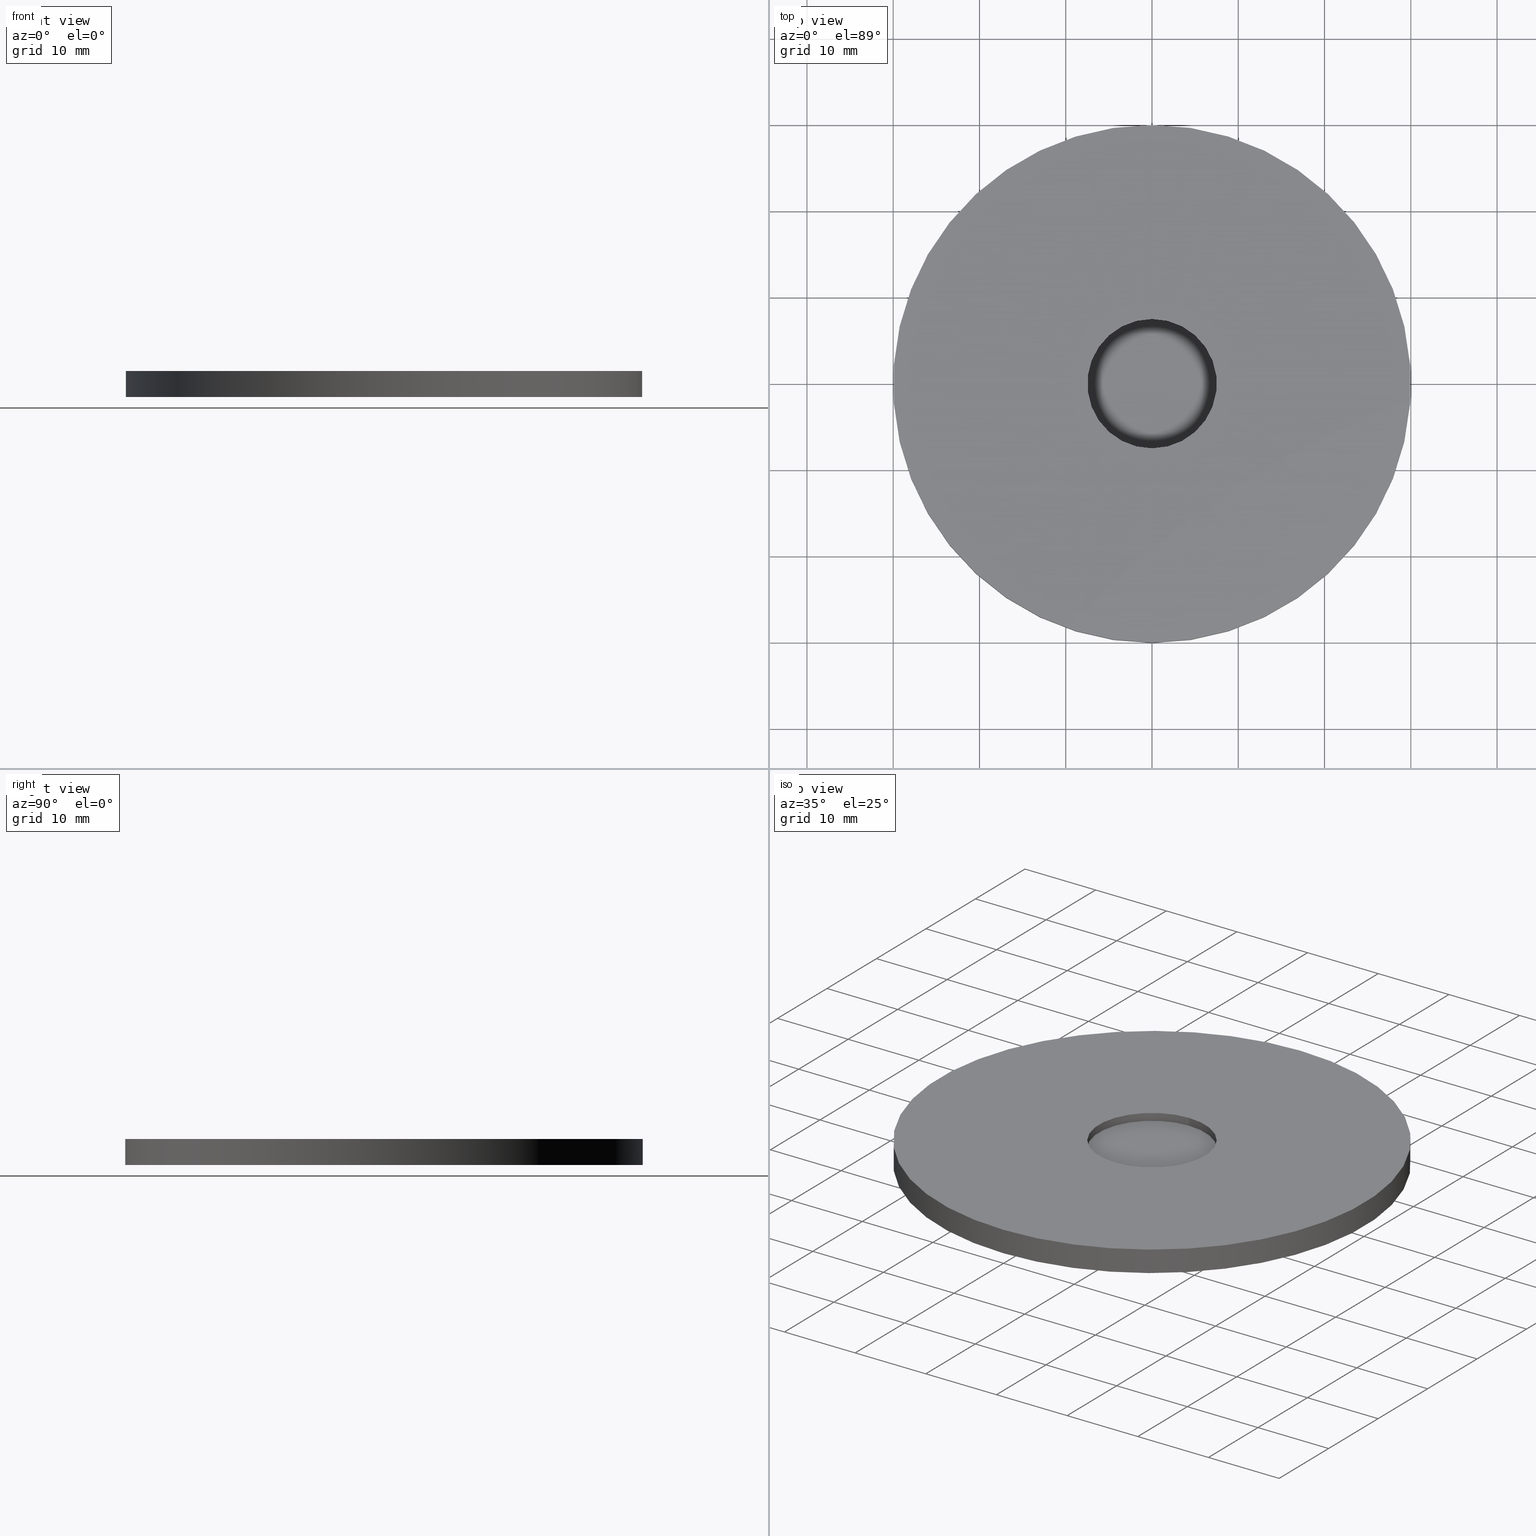
[diagram: canonical four-view strip — front | top / right | iso, engineering-drawing reading convention]
A machine part, canonical four-view strip (front | top / right | iso — engineering-drawing reading convention). The complete STEP part file that produces these views, byte-faithful:
ISO-10303-21;
HEADER;
/* Generated by software containing ST-Developer
 * from STEP Tools, Inc. (www.steptools.com) 
 */

FILE_DESCRIPTION(
/* description */ ('ACC.PIEDE'),
/* implementation_level */ '2;1');

FILE_NAME(
/* name */ 
'C:\\Users\\tecnico7\\Desktop\\NUOVI DISEGNI 3D\\CPDAA0000015.stp',
/* time_stamp */ '2022-11-22T15:40:19+01:00',
/* author */ ('tecnico7'),
/* organization */ (''),
/* preprocessor_version */ 'ST-DEVELOPER v18.1',
/* originating_system */ 'Autodesk Inventor 2022',
/* authorisation */ '');

FILE_SCHEMA (('AUTOMOTIVE_DESIGN { 1 0 10303 214 3 1 1 }'));
ENDSEC;

DATA;
#10=MECHANICAL_DESIGN_GEOMETRIC_PRESENTATION_REPRESENTATION('',(#61,#62,
#63,#64,#65,#66),#145);
#11=SHAPE_REPRESENTATION_RELATIONSHIP('SRR','None',#152,#12);
#12=ADVANCED_BREP_SHAPE_REPRESENTATION('',(#13),#144);
#13=MANIFOLD_SOLID_BREP('None',#72);
#14=FACE_BOUND('',#25,.T.);
#15=PLANE('',#98);
#16=PLANE('',#100);
#17=PLANE('',#103);
#18=FACE_OUTER_BOUND('',#23,.T.);
#19=FACE_OUTER_BOUND('',#24,.T.);
#20=FACE_OUTER_BOUND('',#26,.T.);
#21=FACE_OUTER_BOUND('',#27,.T.);
#22=FACE_OUTER_BOUND('',#28,.T.);
#23=EDGE_LOOP('',(#47,#48,#49,#50));
#24=EDGE_LOOP('',(#51));
#25=EDGE_LOOP('',(#52));
#26=EDGE_LOOP('',(#53));
#27=EDGE_LOOP('',(#54,#55,#56,#57));
#28=EDGE_LOOP('',(#58));
#29=LINE('',#131,#31);
#30=LINE('',#140,#32);
#31=VECTOR('',#110,30.);
#32=VECTOR('',#123,7.5);
#33=CIRCLE('',#96,30.);
#34=CIRCLE('',#97,30.);
#35=CIRCLE('',#99,7.5);
#36=CIRCLE('',#102,7.5);
#37=VERTEX_POINT('',#128);
#38=VERTEX_POINT('',#130);
#39=VERTEX_POINT('',#134);
#40=VERTEX_POINT('',#138);
#41=EDGE_CURVE('',#37,#37,#33,.T.);
#42=EDGE_CURVE('',#37,#38,#29,.T.);
#43=EDGE_CURVE('',#38,#38,#34,.T.);
#44=EDGE_CURVE('',#39,#39,#35,.T.);
#45=EDGE_CURVE('',#40,#40,#36,.T.);
#46=EDGE_CURVE('',#40,#39,#30,.T.);
#47=ORIENTED_EDGE('',*,*,#41,.F.);
#48=ORIENTED_EDGE('',*,*,#42,.T.);
#49=ORIENTED_EDGE('',*,*,#43,.T.);
#50=ORIENTED_EDGE('',*,*,#42,.F.);
#51=ORIENTED_EDGE('',*,*,#43,.F.);
#52=ORIENTED_EDGE('',*,*,#44,.F.);
#53=ORIENTED_EDGE('',*,*,#41,.T.);
#54=ORIENTED_EDGE('',*,*,#45,.F.);
#55=ORIENTED_EDGE('',*,*,#46,.T.);
#56=ORIENTED_EDGE('',*,*,#44,.T.);
#57=ORIENTED_EDGE('',*,*,#46,.F.);
#58=ORIENTED_EDGE('',*,*,#45,.T.);
#59=CYLINDRICAL_SURFACE('',#95,30.);
#60=CYLINDRICAL_SURFACE('',#101,7.5);
#61=STYLED_ITEM('',(#164),#67);
#62=STYLED_ITEM('',(#164),#68);
#63=STYLED_ITEM('',(#164),#69);
#64=STYLED_ITEM('',(#164),#70);
#65=STYLED_ITEM('',(#164),#71);
#66=STYLED_ITEM('',(#163),#13);
#67=ADVANCED_FACE('',(#18),#59,.T.);
#68=ADVANCED_FACE('',(#19,#14),#15,.F.);
#69=ADVANCED_FACE('',(#20),#16,.T.);
#70=ADVANCED_FACE('',(#21),#60,.F.);
#71=ADVANCED_FACE('',(#22),#17,.T.);
#72=CLOSED_SHELL('',(#67,#68,#69,#70,#71));
#73=DERIVED_UNIT_ELEMENT(#76,1.);
#74=DERIVED_UNIT_ELEMENT(#147,-3.);
#75=DIMENSIONAL_EXPONENTS(1.,0.,0.,0.,0.,0.,0.);
#76=(
CONVERSION_BASED_UNIT('gram',#78)
MASS_UNIT()
NAMED_UNIT(#75)
);
#77=(
MASS_UNIT()
NAMED_UNIT(*)
SI_UNIT(.KILO.,.GRAM.)
);
#78=MASS_MEASURE_WITH_UNIT(MASS_MEASURE(0.001),#77);
#79=DERIVED_UNIT((#73,#74));
#80=MEASURE_REPRESENTATION_ITEM('density measure',
POSITIVE_RATIO_MEASURE(0.93),#79);
#81=PROPERTY_DEFINITION_REPRESENTATION(#86,#83);
#82=PROPERTY_DEFINITION_REPRESENTATION(#87,#84);
#83=REPRESENTATION('material name',(#85),#144);
#84=REPRESENTATION('density',(#80),#144);
#85=DESCRIPTIVE_REPRESENTATION_ITEM('Gomma','Gomma');
#86=PROPERTY_DEFINITION('material property','material name',#154);
#87=PROPERTY_DEFINITION('material property','density of part',#154);
#88=DATE_TIME_ROLE('creation_date');
#89=APPLIED_DATE_AND_TIME_ASSIGNMENT(#90,#88,(#154));
#90=DATE_AND_TIME(#91,#92);
#91=CALENDAR_DATE(2011,28,12);
#92=LOCAL_TIME(0,0,0.,#93);
#93=COORDINATED_UNIVERSAL_TIME_OFFSET(0,0,.BEHIND.);
#94=AXIS2_PLACEMENT_3D('placement',#126,#104,#105);
#95=AXIS2_PLACEMENT_3D('',#127,#106,#107);
#96=AXIS2_PLACEMENT_3D('',#129,#108,#109);
#97=AXIS2_PLACEMENT_3D('',#132,#111,#112);
#98=AXIS2_PLACEMENT_3D('',#133,#113,#114);
#99=AXIS2_PLACEMENT_3D('',#135,#115,#116);
#100=AXIS2_PLACEMENT_3D('',#136,#117,#118);
#101=AXIS2_PLACEMENT_3D('',#137,#119,#120);
#102=AXIS2_PLACEMENT_3D('',#139,#121,#122);
#103=AXIS2_PLACEMENT_3D('',#141,#124,#125);
#104=DIRECTION('axis',(0.,0.,1.));
#105=DIRECTION('refdir',(1.,0.,0.));
#106=DIRECTION('center_axis',(0.,0.,-1.));
#107=DIRECTION('ref_axis',(0.,-1.,0.));
#108=DIRECTION('center_axis',(0.,0.,-1.));
#109=DIRECTION('ref_axis',(0.,-1.,0.));
#110=DIRECTION('',(0.,0.,1.));
#111=DIRECTION('center_axis',(0.,0.,-1.));
#112=DIRECTION('ref_axis',(0.,-1.,0.));
#113=DIRECTION('center_axis',(0.,0.,-1.));
#114=DIRECTION('ref_axis',(-1.,0.,0.));
#115=DIRECTION('center_axis',(0.,0.,1.));
#116=DIRECTION('ref_axis',(0.,-1.,0.));
#117=DIRECTION('center_axis',(0.,0.,-1.));
#118=DIRECTION('ref_axis',(-1.,0.,0.));
#119=DIRECTION('center_axis',(0.,0.,1.));
#120=DIRECTION('ref_axis',(0.,-1.,0.));
#121=DIRECTION('center_axis',(0.,0.,1.));
#122=DIRECTION('ref_axis',(0.,-1.,0.));
#123=DIRECTION('',(0.,0.,1.));
#124=DIRECTION('center_axis',(0.,0.,1.));
#125=DIRECTION('ref_axis',(1.,0.,0.));
#126=CARTESIAN_POINT('',(0.,0.,0.));
#127=CARTESIAN_POINT('Origin',(0.,4.286264E-16,7.));
#128=CARTESIAN_POINT('',(0.,30.,-1.83697E-15));
#129=CARTESIAN_POINT('Origin',(0.,0.,0.));
#130=CARTESIAN_POINT('',(0.,30.,3.));
#131=CARTESIAN_POINT('',(3.67394039744206E-15,30.,7.));
#132=CARTESIAN_POINT('Origin',(0.,4.286264E-16,3.));
#133=CARTESIAN_POINT('Origin',(36.0000342781768,36.0000342781768,3.));
#134=CARTESIAN_POINT('',(0.,7.5,3.));
#135=CARTESIAN_POINT('Origin',(0.,4.286264E-16,3.));
#136=CARTESIAN_POINT('Origin',(36.0000342781768,36.0000342781768,-2.204366E-15));
#137=CARTESIAN_POINT('Origin',(0.,4.286264E-16,7.));
#138=CARTESIAN_POINT('',(0.,7.5,2.));
#139=CARTESIAN_POINT('Origin',(0.,1.224647E-16,2.));
#140=CARTESIAN_POINT('',(-9.18485099360515E-16,7.5,7.));
#141=CARTESIAN_POINT('Origin',(-9.00340606574514,-9.00340606572676,2.));
#142=UNCERTAINTY_MEASURE_WITH_UNIT(LENGTH_MEASURE(0.01),#146,
'DISTANCE_ACCURACY_VALUE',
'Maximum model space distance between geometric entities at asserted c
onnectivities');
#143=UNCERTAINTY_MEASURE_WITH_UNIT(LENGTH_MEASURE(0.01),#146,
'DISTANCE_ACCURACY_VALUE',
'Maximum model space distance between geometric entities at asserted c
onnectivities');
#144=(
GEOMETRIC_REPRESENTATION_CONTEXT(3)
GLOBAL_UNCERTAINTY_ASSIGNED_CONTEXT((#142))
GLOBAL_UNIT_ASSIGNED_CONTEXT((#146,#148,#149))
REPRESENTATION_CONTEXT('','3D')
);
#145=(
GEOMETRIC_REPRESENTATION_CONTEXT(3)
GLOBAL_UNCERTAINTY_ASSIGNED_CONTEXT((#143))
GLOBAL_UNIT_ASSIGNED_CONTEXT((#146,#148,#149))
REPRESENTATION_CONTEXT('','3D')
);
#146=(
LENGTH_UNIT()
NAMED_UNIT(*)
SI_UNIT(.MILLI.,.METRE.)
);
#147=(
LENGTH_UNIT()
NAMED_UNIT(*)
SI_UNIT(.CENTI.,.METRE.)
);
#148=(
NAMED_UNIT(*)
PLANE_ANGLE_UNIT()
SI_UNIT($,.RADIAN.)
);
#149=(
NAMED_UNIT(*)
SI_UNIT($,.STERADIAN.)
SOLID_ANGLE_UNIT()
);
#150=SHAPE_DEFINITION_REPRESENTATION(#151,#152);
#151=PRODUCT_DEFINITION_SHAPE('',$,#154);
#152=SHAPE_REPRESENTATION('',(#94),#144);
#153=PRODUCT_DEFINITION_CONTEXT('part definition',#158,'design');
#154=PRODUCT_DEFINITION('CPDAA0000015','CPDAA0000015',#155,#153);
#155=PRODUCT_DEFINITION_FORMATION('A',$,#160);
#156=PRODUCT_RELATED_PRODUCT_CATEGORY('CPDAA0000015','CPDAA0000015',(#160));
#157=APPLICATION_PROTOCOL_DEFINITION('international standard',
'automotive_design',2009,#158);
#158=APPLICATION_CONTEXT(
'Core Data for Automotive Mechanical Design Process');
#159=PRODUCT_CONTEXT('part definition',#158,'mechanical');
#160=PRODUCT('CPDAA0000015','CPDAA0000015','ACC.PIEDE',(#159));
#161=SURFACE_STYLE_RENDERING_WITH_PROPERTIES($,#176,(#162));
#162=SURFACE_STYLE_TRANSPARENT(0.);
#163=PRESENTATION_STYLE_ASSIGNMENT((#165));
#164=PRESENTATION_STYLE_ASSIGNMENT((#166));
#165=SURFACE_STYLE_USAGE(.BOTH.,#167);
#166=SURFACE_STYLE_USAGE(.BOTH.,#168);
#167=SURFACE_SIDE_STYLE('',(#169));
#168=SURFACE_SIDE_STYLE('',(#170,#161));
#169=SURFACE_STYLE_FILL_AREA(#171);
#170=SURFACE_STYLE_FILL_AREA(#172);
#171=FILL_AREA_STYLE('',(#173));
#172=FILL_AREA_STYLE('',(#174));
#173=FILL_AREA_STYLE_COLOUR('',#175);
#174=FILL_AREA_STYLE_COLOUR('',#176);
#175=COLOUR_RGB('',0.529411764705882,0.529411764705882,0.529411764705882);
#176=COLOUR_RGB('',0.16078431372549,0.16078431372549,0.16078431372549);
ENDSEC;
END-ISO-10303-21;
